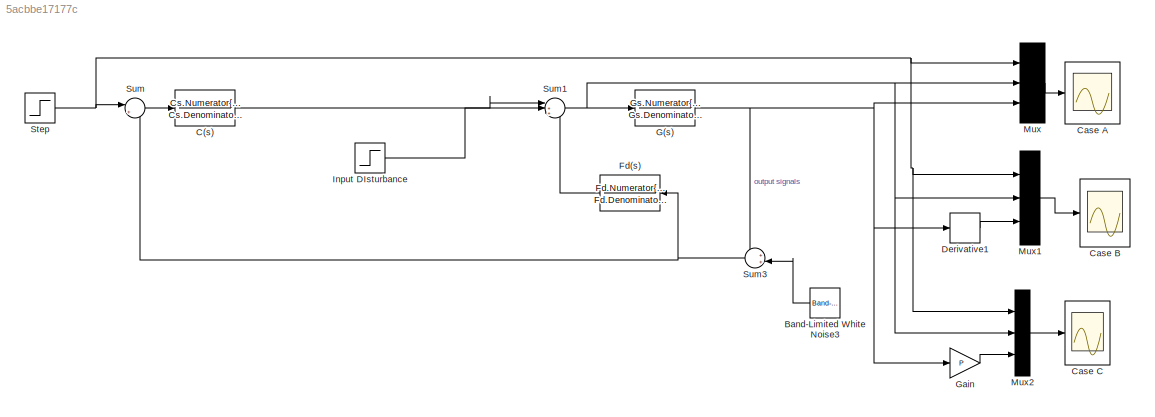
MODEL slx_5acbbe17177c
KIND model
CONFIG AbsTol = auto
CONFIG EnableMultiTasking = off
CONFIG FixedStep = auto
CONFIG MaxStep = auto
CONFIG MinStep = auto
CONFIG RelTol = 1e-3
CONFIG SampleTimeConstraint = Unconstrained
CONFIG Solver = VariableStepAuto
CONFIG SolverName = VariableStepAuto
CONFIG StartTime = 0.0
CONFIG StopTime = time
BLOCK [TransferFcn]  Fd(s)
  Denominator = Fd.Denominator{1,1}
  Numerator = Fd.Numerator{1,1}
BLOCK [Reference] Band-Limited White Noise3  REF=simulink/Sources/Band-Limited
White Noise
  Ports = [0, 1]
  SourceBlock = simulink/Sources/Band-Limited\nWhite Noise
  SourceProductBaseCode = SL
  SourceProductName = Simulink
  SourceType = Band-Limited White Noise.
BLOCK [TransferFcn] C(s)
  Denominator = Cs.Denominator{1,1}
  Numerator = Cs.Numerator{1,1}
BLOCK [Scope] Case A
  Floating = off
  NumInputPorts = 1
  Ports = [1]
  ScopeSpecificationString = Simulink.scopes.TimeScopeBlockCfg('CurrentConfiguration', extmgr.ConfigurationSet(extmgr.Configuration('Core','General UI',true),extmgr.Configuration('Core','Source UI',true),extmgr.Configuration('Sources','WiredSimulink',true,'DataLogging',true,'DataLoggingSaveFormat','StructureWithTime','DataLoggingVariableName','CaseAData'),extmgr.Configuration('Visuals','Time Domain',true,'SerializedDisplays',...<+1518ch>
BLOCK [Scope] Case B
  Floating = off
  NumInputPorts = 1
  Ports = [1]
  ScopeSpecificationString = Simulink.scopes.TimeScopeBlockCfg('CurrentConfiguration', extmgr.ConfigurationSet(extmgr.Configuration('Core','General UI',true),extmgr.Configuration('Core','Source UI',true),extmgr.Configuration('Sources','WiredSimulink',true,'DataLoggingVariableName','CaseBData','DataLogging',true,'DataLoggingSaveFormat','StructureWithTime'),extmgr.Configuration('Visuals','Time Domain',true,'SerializedDisplays',...<+1515ch>
BLOCK [Scope] Case C
  Floating = off
  NumInputPorts = 1
  Ports = [1]
  ScopeSpecificationString = Simulink.scopes.TimeScopeBlockCfg('CurrentConfiguration', extmgr.ConfigurationSet(extmgr.Configuration('Core','General UI',true),extmgr.Configuration('Core','Source UI',true),extmgr.Configuration('Sources','WiredSimulink',true,'DataLoggingVariableName','CaseCData','DataLogging',true,'DataLoggingSaveFormat','StructureWithTime'),extmgr.Configuration('Visuals','Time Domain',true,'SerializedDisplays',...<+1508ch>
BLOCK [Derivative] Derivative1
BLOCK [TransferFcn] G(s)
  Denominator = Gs.Denominator{1,1}
  Numerator = Gs.Numerator{1,1}
BLOCK [Gain] Gain
  Gain = P
  OutDataTypeStr = Inherit: Inherit via internal rule
  ParamDataTypeStr = Inherit: Inherit via internal rule
  SaturateOnIntegerOverflow = off
BLOCK [Step] Input DIsturbance
  After = -3
  SampleTime = 0
  Time = half_time
BLOCK [Mux] Mux
  DisplayOption = bar
  Inputs = 3
  Ports = [3, 1]
BLOCK [Mux] Mux1
  DisplayOption = bar
  Inputs = 3
  Ports = [3, 1]
BLOCK [Mux] Mux2
  DisplayOption = bar
  Inputs = 3
  Ports = [3, 1]
BLOCK [Step] Step
  After = 6
  SampleTime = 0.1
  Time = 0
BLOCK [Sum] Sum
  IconShape = round
  InputSameDT = off
  Inputs = |+-
  OutDataTypeStr = Inherit: Inherit via internal rule
  Ports = [2, 1]
  SaturateOnIntegerOverflow = off
BLOCK [Sum] Sum1
  IconShape = round
  InputSameDT = off
  Inputs = |++-
  OutDataTypeStr = Inherit: Inherit via internal rule
  Ports = [3, 1]
  SaturateOnIntegerOverflow = off
BLOCK [Sum] Sum3
  IconShape = round
  InputSameDT = off
  Inputs = ++|
  OutDataTypeStr = Inherit: Inherit via internal rule
  Ports = [2, 1]
  SaturateOnIntegerOverflow = off
LINE  Fd(s):1 -> Sum1:3
LINE Band-Limited White Noise3:1 -> Sum3:2
LINE C(s):1 -> Sum1:1
LINE Derivative1:1 -> Mux1:3
NET G(s):1 -> Derivative1:1, Gain:1, Mux:3, Sum3:1
LINE Gain:1 -> Mux2:3
LINE Input DIsturbance:1 -> Sum1:2
LINE Mux1:1 -> Case B:1
LINE Mux2:1 -> Case C:1
LINE Mux:1 -> Case A:1
NET Step:1 -> Mux1:1, Mux2:1, Mux:1, Sum:1
NET Sum1:1 -> G(s):1, Mux1:2, Mux2:2, Mux:2
NET Sum3:1 ->  Fd(s):1, Sum:2
LINE Sum:1 -> C(s):1
note: NET lines group one-source signal fan-out (src -> all destinations, sorted); 1:1 wires keep LINE
